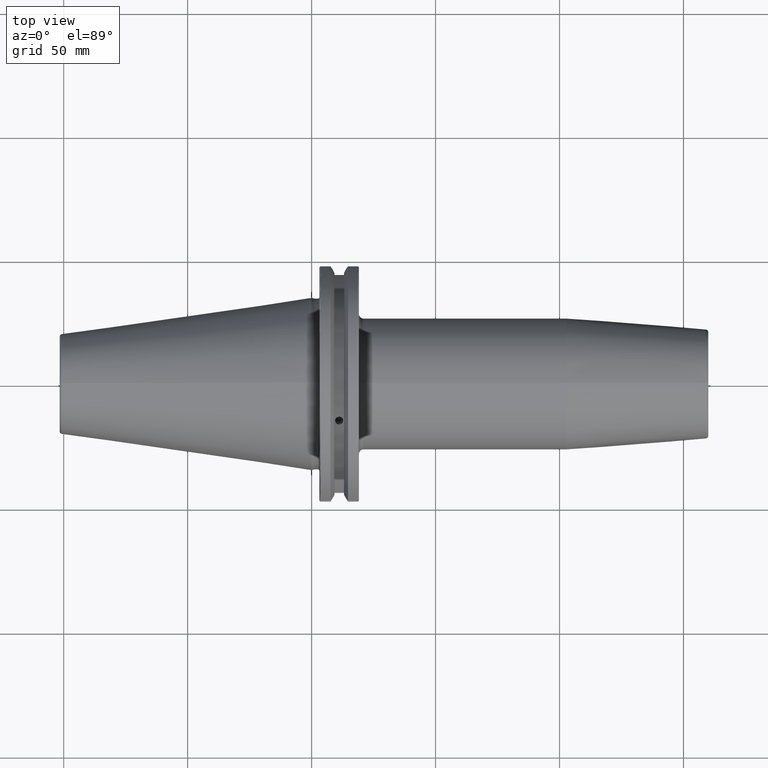
[diagram: clean part render]
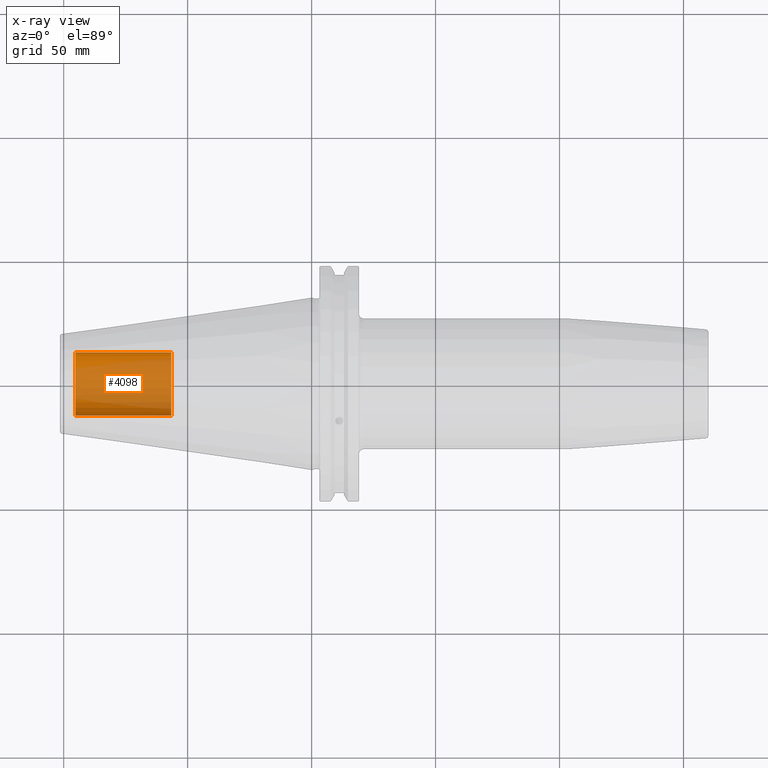
[diagram: x-ray — body ghosted, one internal face saturated and labeled with its STEP entity id]
A machine part, top view, then the same camera in x-ray: the body is ghosted and one INTERNAL B-rep face — a face not visible from any outside direction — is saturated and labeled: STEP entity #4098.
In plain terms, the highlighted cylindrical surface (edge-blend (fillet) strip) has radius 12.7 mm, axis along (-1, 0, 0).
Its self-contained STEP definition (entity closure, byte-faithful):
#4033=CARTESIAN_POINT('',(-9.525E1,0.E0,0.E0));
#4034=DIRECTION('',(1.E0,0.E0,0.E0));
#4035=DIRECTION('',(0.E0,-1.E0,0.E0));
#4036=AXIS2_PLACEMENT_3D('',#4033,#4034,#4035);
#4043=DIRECTION('',(1.E0,0.E0,0.E0));
#4044=VECTOR('',#4043,3.865E1);
#4045=CARTESIAN_POINT('',(-9.525E1,-1.27E1,0.E0));
#4046=LINE('',#4045,#4044);
#4047=DIRECTION('',(1.E0,0.E0,0.E0));
#4048=VECTOR('',#4047,3.865E1);
#4049=CARTESIAN_POINT('',(-9.525E1,1.27E1,0.E0));
#4050=LINE('',#4049,#4048);
#4056=CARTESIAN_POINT('',(-5.66E1,0.E0,0.E0));
#4057=DIRECTION('',(-1.E0,0.E0,0.E0));
#4058=DIRECTION('',(0.E0,1.E0,0.E0));
#4059=AXIS2_PLACEMENT_3D('',#4056,#4057,#4058);
#4071=CARTESIAN_POINT('',(-5.66E1,1.27E1,0.E0));
#4072=CARTESIAN_POINT('',(-5.66E1,-1.27E1,0.E0));
#4073=VERTEX_POINT('',#4071);
#4074=VERTEX_POINT('',#4072);
#4075=CARTESIAN_POINT('',(-9.525E1,1.27E1,0.E0));
#4076=CARTESIAN_POINT('',(-9.525E1,-1.27E1,0.E0));
#4077=VERTEX_POINT('',#4075);
#4078=VERTEX_POINT('',#4076);
#4083=CARTESIAN_POINT('',(-2.108908318961E1,0.E0,0.E0));
#4084=DIRECTION('',(-1.E0,0.E0,0.E0));
#4085=DIRECTION('',(0.E0,1.E0,0.E0));
#4086=AXIS2_PLACEMENT_3D('',#4083,#4084,#4085);
#4087=CYLINDRICAL_SURFACE('',#4086,1.27E1);
#4089=ORIENTED_EDGE('',*,*,#4088,.T.);
#4091=ORIENTED_EDGE('',*,*,#4090,.T.);
#4093=ORIENTED_EDGE('',*,*,#4092,.T.);
#4095=ORIENTED_EDGE('',*,*,#4094,.F.);
#4096=EDGE_LOOP('',(#4089,#4091,#4093,#4095));
#4097=FACE_OUTER_BOUND('',#4096,.F.);
#4098=ADVANCED_FACE('',(#4097),#4087,.F.);
#4037=CIRCLE('',#4036,1.27E1);
#4060=CIRCLE('',#4059,1.27E1);
#4088=EDGE_CURVE('',#4078,#4077,#4037,.T.);
#4090=EDGE_CURVE('',#4077,#4073,#4050,.T.);
#4092=EDGE_CURVE('',#4073,#4074,#4060,.T.);
#4094=EDGE_CURVE('',#4078,#4074,#4046,.T.);